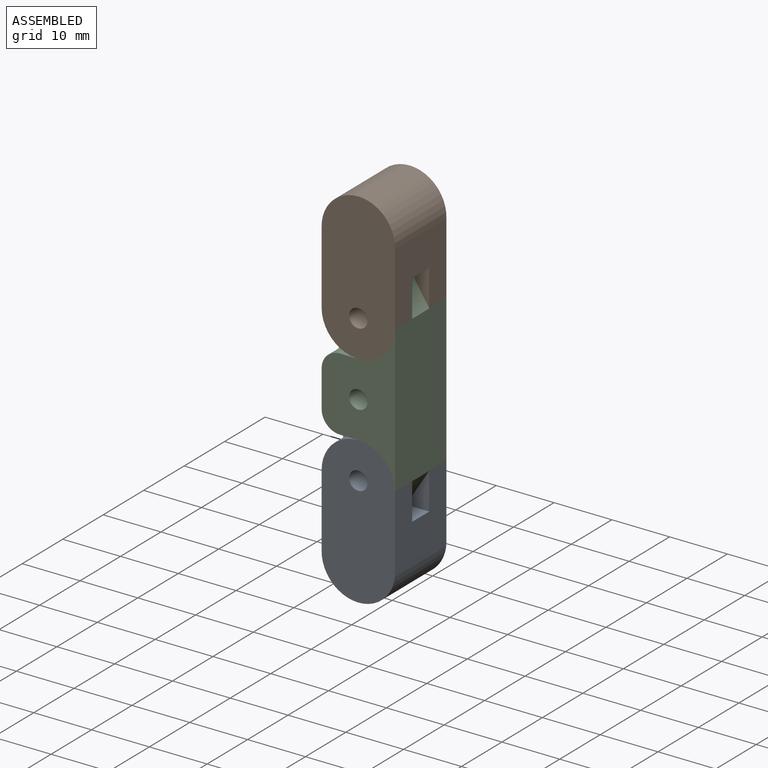
[diagram: assembled view]
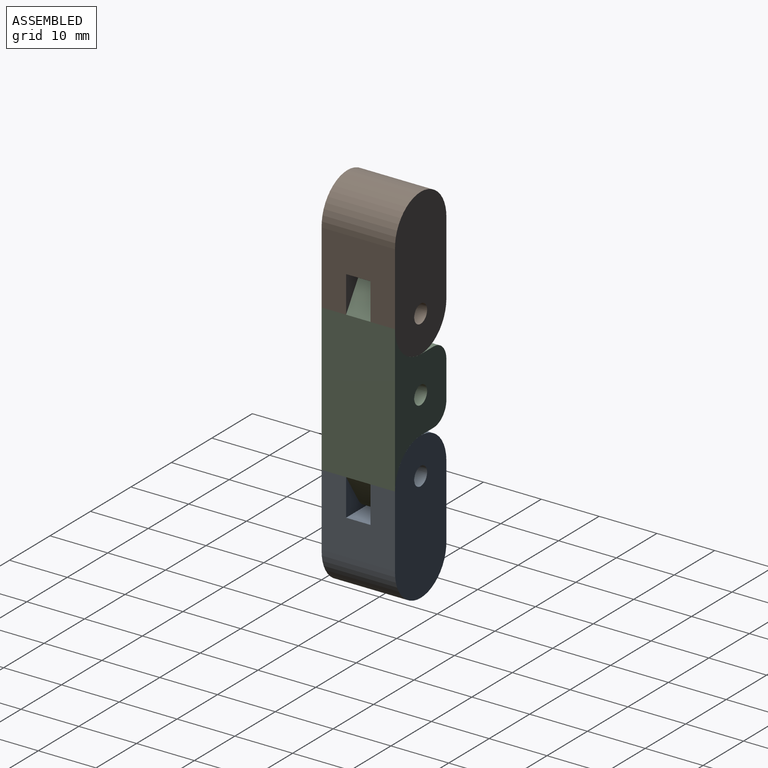
[diagram: assembled view, second angle]
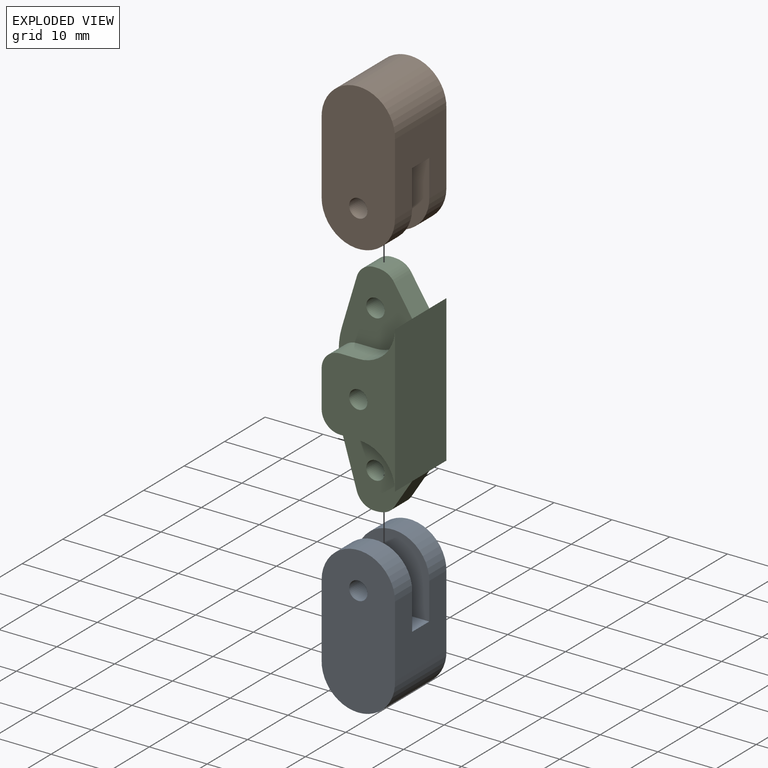
[diagram: exploded view]
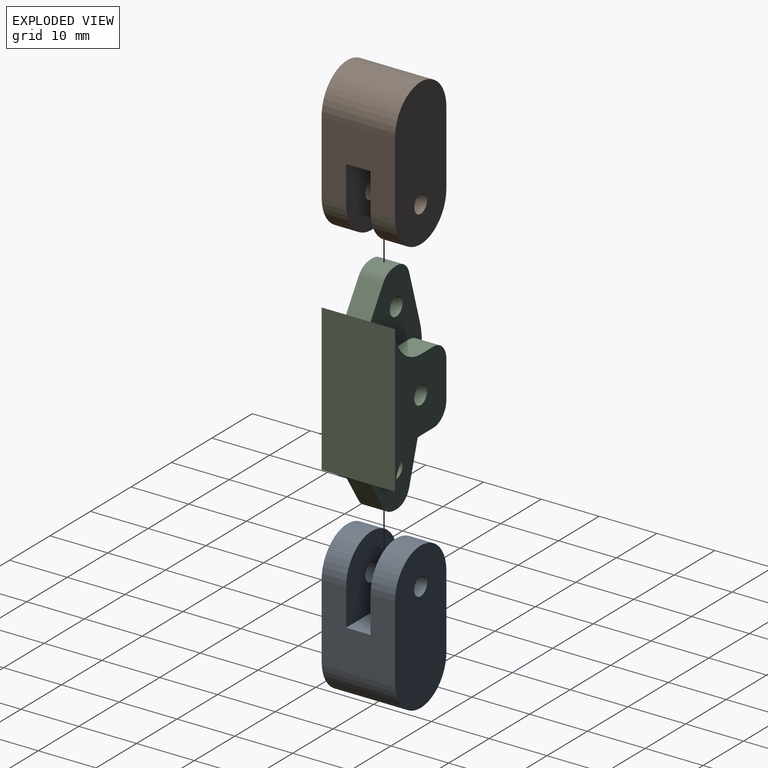
[diagram: exploded view, second angle]
ASSEMBLY  parts=3 mates=2
PART A: 12 faces, bbox 12.7x12.7x25.4 mm
  f0: plane 12.7x12.49mm, normal (-1,0,0), area 131.8mm2, adj f3,f4,f5,f7,f8,f9,f10,f11
  f1: plane 12.7x12.49mm, normal (1,0,0), area 131.8mm2, adj f3,f4,f5,f7,f8,f9,f10,f11
  f2: cylinder r=1.59mm len=4.23mm, axis (0,1,0), area 42.2mm2, adj f7,f9
  f3: cylinder r=6.35mm len=12.7mm, axis (0,1,0), area 84.5mm2, adj f0,f1,f8,f10
  f4: cylinder r=6.35mm len=12.71mm, axis (0,1,0), area 258.7mm2, adj f0,f1,f7,f8
  f5: cylinder r=6.35mm len=12.7mm, axis (0,1,0), area 84.5mm2, adj f0,f1,f7,f9
  f6: cylinder r=1.59mm len=4.23mm, axis (0,1,0), area 42.2mm2, adj f8,f10
  f7: plane 25.4x12.71mm, normal (0,-1,0), area 280.1mm2, adj f0,f1,f2,f4,f5
  f8: plane 25.4x12.71mm, normal (0,1,0), area 280.1mm2, adj f0,f1,f3,f4,f6
  f9: plane 12.7x12.7mm, normal (0,1,0), area 136.1mm2, adj f0,f1,f2,f5,f11
  f10: plane 12.7x12.7mm, normal (0,-1,0), area 136.1mm2, adj f0,f1,f3,f6,f11
  f11: plane 12.7x4.23mm, normal (0,0,-1), area 53.8mm2, adj f0,f1,f9,f10
PART B: same geometry as A
PART C: 35 faces, bbox 12.7x12.7x38.1 mm
  f0: plane 15.88x12.7mm, normal (0,1,0), area 108mm2, adj f2,f4,f5,f6,f8,f9,f11,f12
  f1: plane 15.88x12.7mm, normal (0,-1,0), area 108mm2, adj f2,f3,f5,f6,f9,f11,f12,f13
  f2: cylinder r=6.35mm len=4.23mm, axis (0,-1,0), area 6.5mm2, adj f0,f1,f16,f17
  f3: plane 4.23x3.18mm, normal (0,0,1), area 13.4mm2, adj f1,f13,f14,f18
  f4: cylinder r=6.35mm len=6.35mm, axis (0,1,0), area 42.2mm2, adj f0,f7,f8,f15
  f5: plane 4.83x4.23mm, normal (0.84,0,0.54), area 24.3mm2, adj f0,f1,f7,f16
  f6: cylinder r=12.7mm len=4.23mm, axis (0,-1,0), area 15.7mm2, adj f0,f1,f9,f11
  f7: plane 25.4x12.7mm, normal (1,0,0), area 322.6mm2, adj f4,f5,f13,f14,f15,f24,f25,f30
  f8: plane 4.23x3.18mm, normal (0,0,1), area 13.4mm2, adj f0,f4,f15,f19
  f9: plane 12.7x8.97mm, normal (-1,0,0), area 91.7mm2, adj f0,f1,f6,f14,f15,f18,f19,f20
  f10: cylinder r=1.59mm len=12.7mm, axis (0,-1,0), area 126.7mm2, adj f14,f15
  f11: plane 8.65x4.23mm, normal (-0.96,0,0.29), area 38.2mm2, adj f0,f1,f6,f17
  f12: cylinder r=1.59mm len=4.23mm, axis (0,1,0), area 42.2mm2, adj f0,f1
  f13: cylinder r=6.35mm len=6.35mm, axis (0,1,0), area 42.2mm2, adj f1,f3,f7,f14
  f14: plane 25.4x12.7mm, normal (0,-1,0), area 166.4mm2, adj f3,f7,f9,f10,f13,f18,f23,f30
  f15: plane 25.4x12.7mm, normal (0,1,0), area 166.4mm2, adj f4,f7,f8,f9,f10,f19,f24,f27
  f16: cylinder r=3.17mm len=4.23mm, axis (0,-1,0), area 11mm2, adj f0,f1,f2,f5
  f17: cylinder r=3.17mm len=4.23mm, axis (0,-1,0), area 16.4mm2, adj f0,f1,f2,f11
  f18: cylinder r=3.17mm len=4.23mm, axis (0,1,0), area 21.1mm2, adj f1,f3,f9,f14
  f19: cylinder r=3.17mm len=4.23mm, axis (0,1,0), area 21.1mm2, adj f0,f8,f9,f15
  f20: plane 15.88x12.7mm, normal (0,1,0), area 108mm2, adj f9,f22,f24,f25,f26,f27,f28,f29
  f21: plane 15.88x12.7mm, normal (0,-1,0), area 108mm2, adj f9,f22,f23,f25,f26,f28,f29,f30
  f22: cylinder r=6.35mm len=4.23mm, axis (0,-1,0), area 6.5mm2, adj f20,f21,f31,f32
  f23: plane 4.23x3.18mm, normal (0,0,-1), area 13.4mm2, adj f14,f21,f30,f33
  f24: cylinder r=6.35mm len=6.35mm, axis (0,1,0), area 42.2mm2, adj f7,f15,f20,f27
  f25: plane 4.83x4.23mm, normal (0.84,0,-0.54), area 24.3mm2, adj f7,f20,f21,f31
  f26: cylinder r=12.7mm len=4.23mm, axis (0,-1,0), area 15.7mm2, adj f9,f20,f21,f28
  f27: plane 4.23x3.18mm, normal (0,0,-1), area 13.4mm2, adj f15,f20,f24,f34
  f28: plane 8.65x4.23mm, normal (-0.96,0,-0.29), area 38.2mm2, adj f20,f21,f26,f32
  f29: cylinder r=1.59mm len=4.23mm, axis (0,1,0), area 42.2mm2, adj f20,f21
  f30: cylinder r=6.35mm len=6.35mm, axis (0,1,0), area 42.2mm2, adj f7,f14,f21,f23
  f31: cylinder r=3.17mm len=4.23mm, axis (0,-1,0), area 11mm2, adj f20,f21,f22,f25
  f32: cylinder r=3.17mm len=4.23mm, axis (0,-1,0), area 16.4mm2, adj f20,f21,f22,f28
  f33: cylinder r=3.17mm len=4.23mm, axis (0,1,0), area 21.1mm2, adj f9,f14,f21,f23
  f34: cylinder r=3.17mm len=4.23mm, axis (0,1,0), area 21.1mm2, adj f9,f15,f20,f27
PLACE A rot(axis=(0,-1,0),180deg) t=(18.88,-2.62,-15.55)mm
PLACE B t=(18.88,-2.62,9.85)mm
PLACE C rot(axis=(0,1,0),0deg) t=(18.88,-8.97,-2.85)mm
MATE slider C.f29 <-> A.f2  axis (0,-1,0) through (18.88,-11.09,-15.55)mm
MATE revolute C.f12 <-> B.f2  axis (0,1,0) through (18.88,-6.86,9.85)mm
